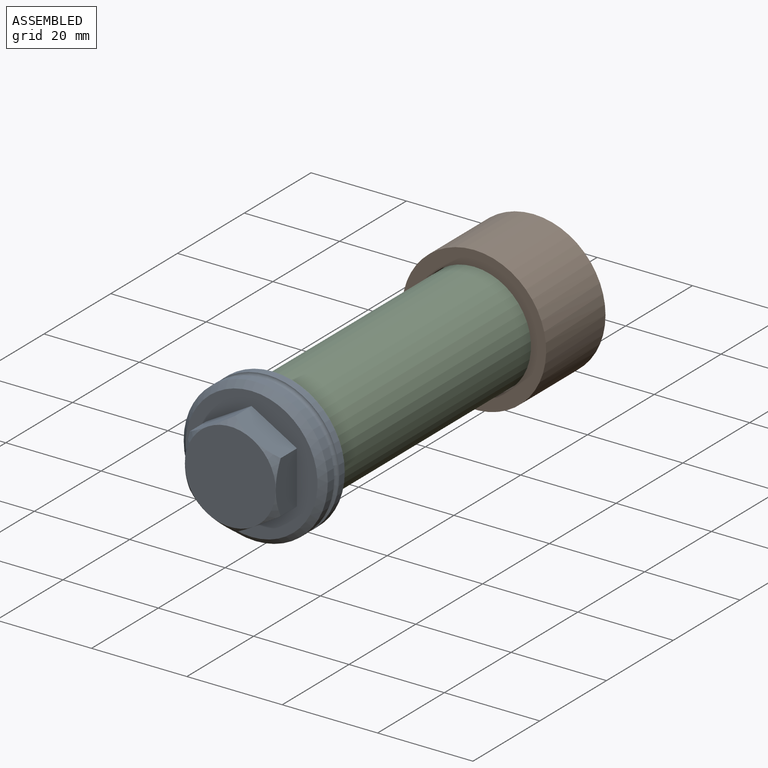
[diagram: assembled view]
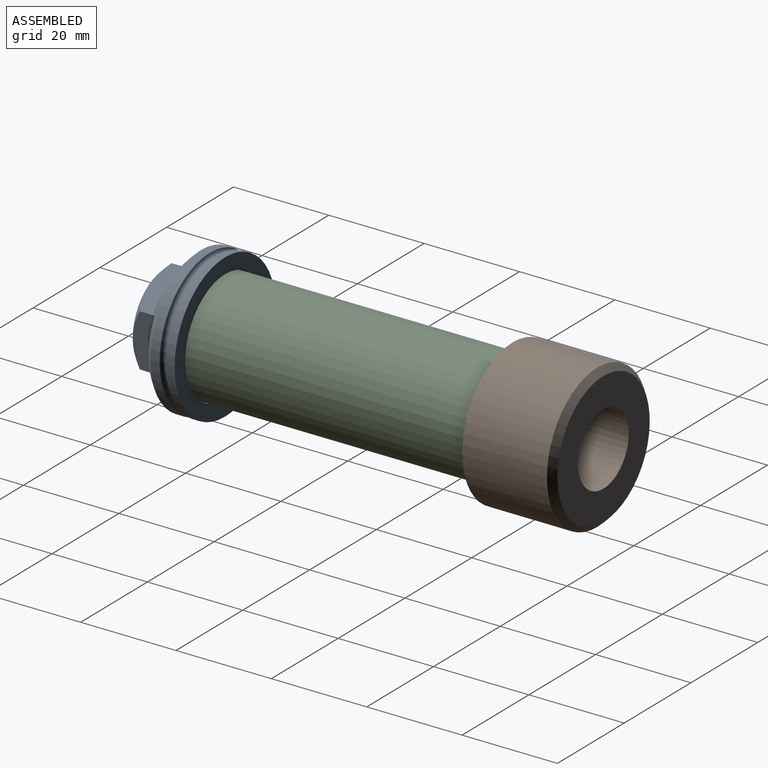
[diagram: assembled view, second angle]
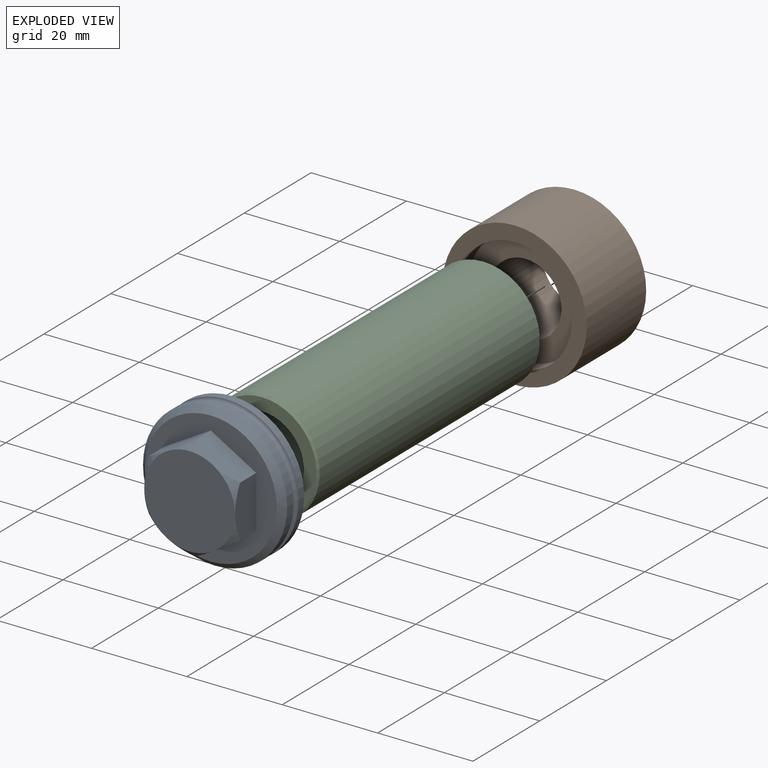
[diagram: exploded view]
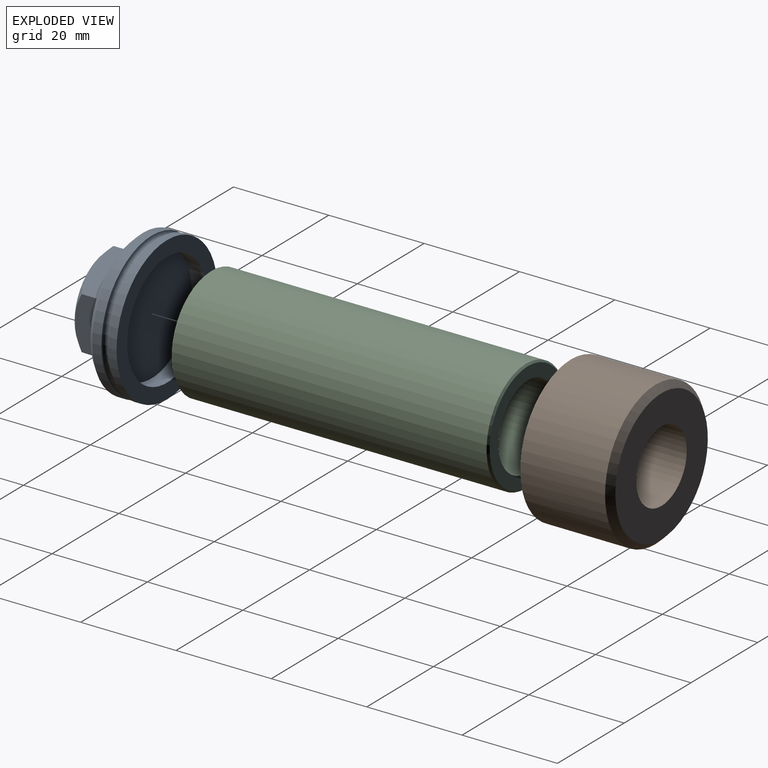
[diagram: exploded view, second angle]
ASSEMBLY  parts=3 mates=2
PART A: 21 faces, bbox 33.9x12.7x33.9 mm
  f0: plane 27.69x27.69mm, normal (0,-1,0), area 287.7mm2, adj f7,f8,f9,f10,f11,f12,f20
  f1: plane 30.23x30.23mm, normal (0,1,0), area 269.8mm2, adj f2,f6
  f2: cylinder r=11.94mm len=23.88mm, axis (0,1,0), area 238.2mm2, adj f1,f3
  f3: plane 23.88x23.88mm, normal (0,1,0), area 447.7mm2, adj f2
  f4: cylinder r=15.11mm len=30.23mm, axis (0,1,0), area 180.9mm2, adj f5,f20
  f5: torus R=15.11mm, axis (0,1,0), area 220mm2, adj f4,f6
  f6: cylinder r=15.11mm len=30.23mm, axis (0,1,0), area 156.8mm2, adj f1,f5
  f7: plane 9.53x6.35mm, normal (0.5,0,0.87), area 64.3mm2, adj f0,f8,f12,f14,f18
  f8: plane 9.53x6.35mm, normal (-0.5,0,0.87), area 64.3mm2, adj f0,f7,f9,f17,f18
  f9: plane 11.02x6.36mm, normal (-1,0,0), area 64.3mm2, adj f0,f8,f10,f16,f17
  f10: plane 9.53x6.35mm, normal (-0.5,0,-0.87), area 64.3mm2, adj f0,f9,f11,f15,f16
  f11: plane 9.53x6.35mm, normal (0.5,0,-0.87), area 64.3mm2, adj f0,f10,f12,f13,f15
  f12: plane 11.02x6.36mm, normal (1,0,0), area 64.3mm2, adj f0,f7,f11,f13,f14
  f13: cone r=9.53mm half-angle=45deg, axis (0,1,0), area 6.9mm2, adj f11,f12,f19
  f14: cone r=9.53mm half-angle=45deg, axis (0,1,0), area 6.9mm2, adj f7,f12,f19
  f15: cone r=9.53mm half-angle=45deg, axis (0,1,0), area 6.9mm2, adj f10,f11,f19
  f16: cone r=9.53mm half-angle=45deg, axis (0,1,0), area 6.9mm2, adj f9,f10,f19
  f17: cone r=9.53mm half-angle=45deg, axis (0,1,0), area 6.9mm2, adj f8,f9,f19
  f18: cone r=9.53mm half-angle=45deg, axis (0,1,0), area 6.9mm2, adj f7,f8,f19
  f19: plane 19.05x19.05mm, normal (0,-1,0), area 285mm2, adj f13,f14,f15,f16,f17,f18
  f20: cone r=15.11mm half-angle=45deg, axis (0,1,0), area 163.4mm2, adj f0,f4
PART B: 7 faces, bbox 30.2x19.1x30.2 mm
  f0: plane 23.88x23.88mm, normal (0,-1,0), area 269.1mm2, adj f1,f5
  f1: cylinder r=11.94mm len=23.88mm, axis (0,1,0), area 238.2mm2, adj f0,f2
  f2: plane 30.23x30.23mm, normal (0,-1,0), area 269.8mm2, adj f1,f3
  f3: cylinder r=15.11mm len=30.23mm, axis (0,1,0), area 1688.3mm2, adj f2,f6
  f4: plane 27.69x27.69mm, normal (0,1,0), area 423.4mm2, adj f5,f6
  f5: cylinder r=7.54mm len=15.88mm, axis (0,1,0), area 752.2mm2, adj f0,f4
  f6: cone r=13.84mm half-angle=45deg, axis (0,-1,0), area 163.4mm2, adj f3,f4
PART C: 6 faces, bbox 23.6x66.7x23.6 mm
  f0: cylinder r=11.81mm len=65.91mm, axis (0,1,0), area 4891.4mm2, adj f4,f5
  f1: plane 22.86x22.86mm, normal (0,1,0), area 169.2mm2, adj f2,f4
  f2: cylinder r=8.76mm len=66.68mm, axis (0,1,0), area 3671.1mm2, adj f1,f3
  f3: plane 22.86x22.86mm, normal (0,-1,0), area 169.2mm2, adj f2,f5
  f4: cone r=11.43mm half-angle=45deg, axis (0,-1,0), area 39.3mm2, adj f0,f1
  f5: cone r=11.94mm half-angle=45deg, axis (0,1,0), area 39.3mm2, adj f0,f3
PLACE A at identity
PLACE B at identity fixed
PLACE C at identity
MATE fastened C.f0 <-> A.f2  axis (0,-1,0) through (0,-88.9,0)mm
MATE fastened C.f0 <-> B.f5  axis (0,1,0) through (0,-22.22,0)mm
